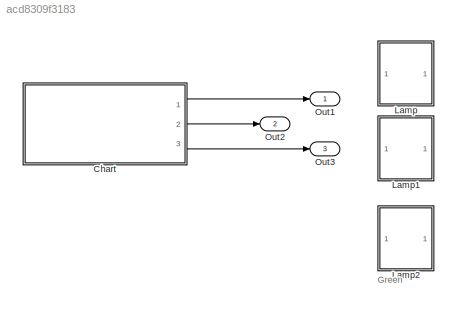
MODEL slx_acd8309f3183
KIND model
CONFIG AbsTol = auto
CONFIG FixedStep = auto
CONFIG MaxStep = auto
CONFIG MinStep = auto
CONFIG RelTol = 1e-3
CONFIG SampleTimeConstraint = Unconstrained
CONFIG Solver = FixedStepDiscrete
CONFIG SolverMode = Auto
CONFIG SolverName = FixedStepDiscrete
CONFIG StartTime = 0.0
CONFIG StopTime = inf
WORKSPACE source: MAT-file member
WORKSPACE handle: class17 (value not decoded)
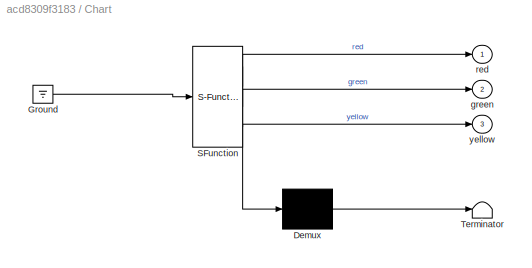
BLOCK [SubSystem] Chart
  ErrorFcn = Stateflow.Translate.translate
  PermitHierarchicalResolution = ExplicitOnly
  Ports = [0, 3]
  RequestExecContextInheritance = off
  SFBlockType = Chart
  TreatAsAtomicUnit = on
  Variant = off
BLOCK [Demux] Chart/ Demux 
  Outputs = 1
  Ports = [1, 1]
BLOCK [Ground] Chart/ Ground 
BLOCK [S-Function] Chart/ SFunction 
  EnableBusSupport = on
  FunctionName = sf_sfun
  PortCounts = [1 4]
  Ports = [1, 4]
  SFunctionDeploymentMode = off
  Tag = Stateflow S-Function Traffic_Light_Final 3
BLOCK [Terminator] Chart/ Terminator 
BLOCK [Outport] Chart/green
  IconDisplay = Port number
  Port = 2
BLOCK [Outport] Chart/red
  IconDisplay = Port number
BLOCK [Outport] Chart/yellow
  IconDisplay = Port number
  Port = 3
BLOCK [SubSystem] Lamp
  DialogController = hmiCreateDDGDialog
  IsWebBlock = on
  MaskHideContents = on
  Ports = []
  RequestExecContextInheritance = off
  Variant = off
BLOCK [SubSystem] Lamp1
  DialogController = hmiCreateDDGDialog
  IsWebBlock = on
  MaskHideContents = on
  Ports = []
  RequestExecContextInheritance = off
  Variant = off
BLOCK [SubSystem] Lamp2
  DialogController = hmiCreateDDGDialog
  IsWebBlock = on
  MaskHideContents = on
  Ports = []
  RequestExecContextInheritance = off
  Variant = off
BLOCK [Outport] Out1
  IconDisplay = Port number
BLOCK [Outport] Out2
  IconDisplay = Port number
  Port = 2
BLOCK [Outport] Out3
  IconDisplay = Port number
  Port = 3
ANNOTATION (root): Green
LINE Chart:1 -> Out1:1
LINE Chart:2 -> Out2:1
LINE Chart:3 -> Out3:1
CHART Chart states=3 transitions=4
  STATE_LABEL 'STOP\nentry:\nred=1;\nyellow=0;\ngreen=0;'
  STATE_LABEL 'PrepareToStop\nentry:\nred=0;\nyellow=1;\ngreen=0;'
  STATE_LABEL 'GO\nentry:\nred=0;\nyellow=0;\ngreen=1;'
